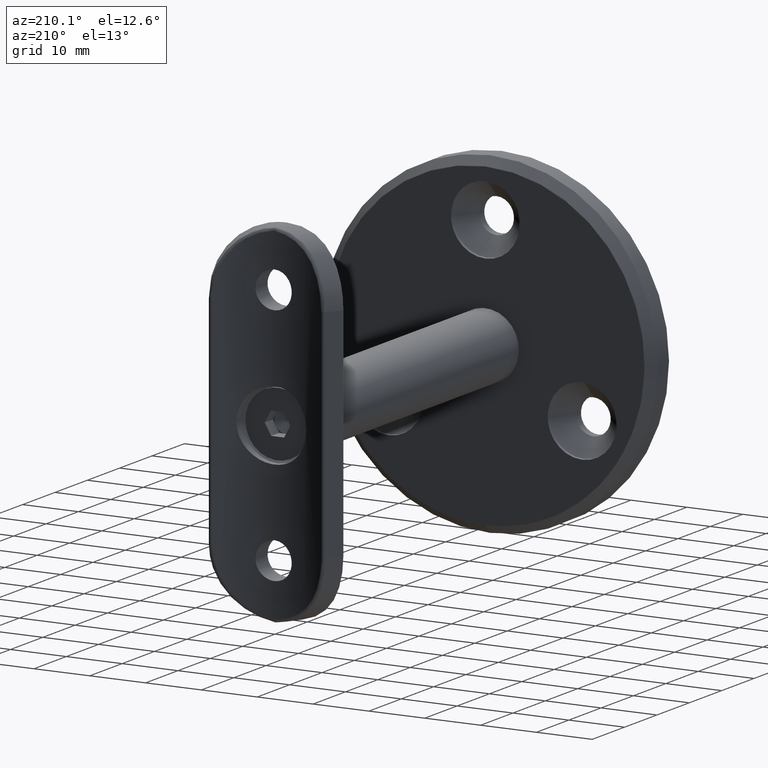
[diagram: clean part render]
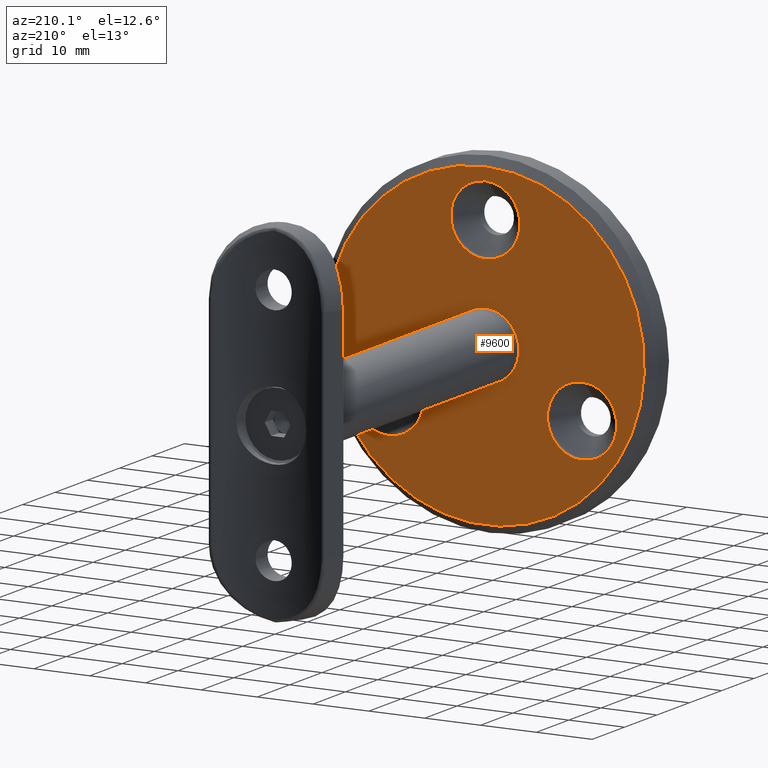
[diagram: same view with one face highlighted and labeled with its STEP entity id]
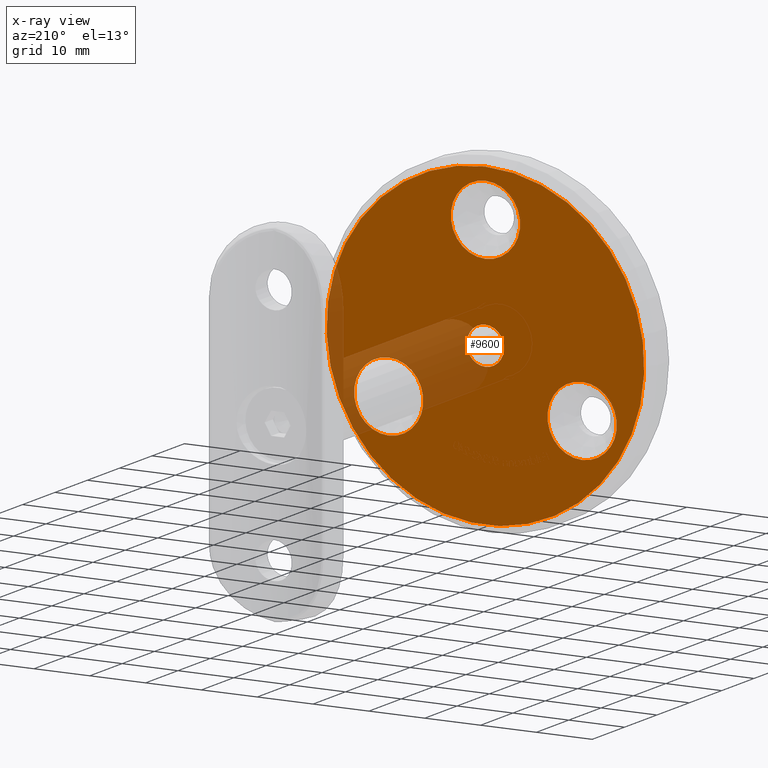
[diagram: x-ray of the same camera — body ghosted, the highlighted face saturated]
A machine part, auxiliary view. The second image highlights one B-rep face of the part: STEP entity #9600.
The next image is the same camera in x-ray: the body ghosted, the highlighted face saturated — about 11% of this face is hidden behind the body in this view.
In plain terms, the highlighted planar face has unit normal (0, 1, 0).
Its self-contained STEP definition (entity closure, byte-faithful):
#104 = EDGE_CURVE ( 'NONE', #432, #432, #13822, .T. ) ;
#386 = CARTESIAN_POINT ( 'NONE',  ( -17.32050807568873196, 5.000000000000000888, -10.00000000000008171 ) ) ;
#432 = VERTEX_POINT ( 'NONE', #11853 ) ;
#535 = CARTESIAN_POINT ( 'NONE',  ( 0.000000000000000000, 5.000000000000000888, 0.000000000000000000 ) ) ;
#977 = DIRECTION ( 'NONE',  ( -0.000000000000000000, -1.000000000000000000, -0.000000000000000000 ) ) ;
#1141 = AXIS2_PLACEMENT_3D ( 'NONE', #6642, #14346, #15745 ) ;
#1202 = DIRECTION ( 'NONE',  ( -0.000000000000000000, -1.000000000000000000, -0.000000000000000000 ) ) ;
#1208 = CIRCLE ( 'NONE', #6115, 6.199999999999998401 ) ;
#1424 = AXIS2_PLACEMENT_3D ( 'NONE', #13338, #12158, #8323 ) ;
#1933 = DIRECTION ( 'NONE',  ( 0.000000000000000000, 1.000000000000000000, 0.000000000000000000 ) ) ;
#2217 = CARTESIAN_POINT ( 'NONE',  ( 17.32050807568886697, 5.000000000000000888, -9.999999999999838352 ) ) ;
#2399 = VERTEX_POINT ( 'NONE', #6786 ) ;
#2748 = PLANE ( 'NONE',  #1141 ) ;
#3103 = DIRECTION ( 'NONE',  ( 0.000000000000000000, 0.000000000000000000, 1.000000000000000000 ) ) ;
#3187 = EDGE_LOOP ( 'NONE', ( #5902 ) ) ;
#3598 = EDGE_CURVE ( 'NONE', #10605, #10605, #14538, .T. ) ;
#5421 = AXIS2_PLACEMENT_3D ( 'NONE', #386, #10463, #3103 ) ;
#5480 = CIRCLE ( 'NONE', #5421, 6.200000000000000178 ) ;
#5902 = ORIENTED_EDGE ( 'NONE', *, *, #7461, .T. ) ;
#6115 = AXIS2_PLACEMENT_3D ( 'NONE', #2217, #977, #8935 ) ;
#6642 = CARTESIAN_POINT ( 'NONE',  ( 0.000000000000000000, 5.000000000000000888, 0.000000000000000000 ) ) ;
#6786 = CARTESIAN_POINT ( 'NONE',  ( 17.32050807568886697, 5.000000000000000888, -3.799999999999840838 ) ) ;
#6863 = FACE_BOUND ( 'NONE', #11960, .T. ) ;
#7110 = ORIENTED_EDGE ( 'NONE', *, *, #104, .T. ) ;
#7461 = EDGE_CURVE ( 'NONE', #2399, #2399, #1208, .T. ) ;
#7769 = AXIS2_PLACEMENT_3D ( 'NONE', #14337, #1202, #10323 ) ;
#7918 = FACE_BOUND ( 'NONE', #11213, .T. ) ;
#8228 = ORIENTED_EDGE ( 'NONE', *, *, #8387, .T. ) ;
#8295 = CARTESIAN_POINT ( 'NONE',  ( -17.32050807568873196, 5.000000000000000888, -3.800000000000081979 ) ) ;
#8323 = DIRECTION ( 'NONE',  ( 0.000000000000000000, 0.000000000000000000, 1.000000000000000000 ) ) ;
#8364 = ORIENTED_EDGE ( 'NONE', *, *, #3598, .T. ) ;
#8387 = EDGE_CURVE ( 'NONE', #11593, #11593, #16461, .T. ) ;
#8935 = DIRECTION ( 'NONE',  ( 0.000000000000000000, 0.000000000000000000, 1.000000000000000000 ) ) ;
#9600 = ADVANCED_FACE ( 'NONE', ( #6863, #11192, #11400, #7918, #14426 ), #2748, .T. ) ;
#10323 = DIRECTION ( 'NONE',  ( 0.000000000000000000, 0.000000000000000000, 1.000000000000000000 ) ) ;
#10463 = DIRECTION ( 'NONE',  ( -0.000000000000000000, -1.000000000000000000, -0.000000000000000000 ) ) ;
#10605 = VERTEX_POINT ( 'NONE', #13541 ) ;
#10917 = EDGE_CURVE ( 'NONE', #15846, #15846, #5480, .T. ) ;
#10994 = CARTESIAN_POINT ( 'NONE',  ( 0.000000000000000000, 5.000000000000000888, 3.349999999999999201 ) ) ;
#11070 = ORIENTED_EDGE ( 'NONE', *, *, #10917, .T. ) ;
#11192 = FACE_BOUND ( 'NONE', #11265, .T. ) ;
#11213 = EDGE_LOOP ( 'NONE', ( #8228 ) ) ;
#11265 = EDGE_LOOP ( 'NONE', ( #11070 ) ) ;
#11400 = FACE_BOUND ( 'NONE', #3187, .T. ) ;
#11593 = VERTEX_POINT ( 'NONE', #10994 ) ;
#11853 = CARTESIAN_POINT ( 'NONE',  ( 0.000000000000000000, 5.000000000000000888, 28.45857864376268864 ) ) ;
#11960 = EDGE_LOOP ( 'NONE', ( #8364 ) ) ;
#12158 = DIRECTION ( 'NONE',  ( -0.000000000000000000, -1.000000000000000000, -0.000000000000000000 ) ) ;
#13338 = CARTESIAN_POINT ( 'NONE',  ( 0.000000000000000000, 5.000000000000000888, 20.00000000000000000 ) ) ;
#13541 = CARTESIAN_POINT ( 'NONE',  ( 0.000000000000000000, 5.000000000000000888, 26.20000000000000284 ) ) ;
#13613 = DIRECTION ( 'NONE',  ( 0.000000000000000000, 0.000000000000000000, 1.000000000000000000 ) ) ;
#13822 = CIRCLE ( 'NONE', #16753, 28.45857864376268864 ) ;
#14337 = CARTESIAN_POINT ( 'NONE',  ( 0.000000000000000000, 5.000000000000000888, 0.000000000000000000 ) ) ;
#14346 = DIRECTION ( 'NONE',  ( 0.000000000000000000, 1.000000000000000000, 0.000000000000000000 ) ) ;
#14426 = FACE_OUTER_BOUND ( 'NONE', #16183, .T. ) ;
#14538 = CIRCLE ( 'NONE', #1424, 6.200000000000001066 ) ;
#15745 = DIRECTION ( 'NONE',  ( 0.000000000000000000, -0.000000000000000000, 1.000000000000000000 ) ) ;
#15846 = VERTEX_POINT ( 'NONE', #8295 ) ;
#16183 = EDGE_LOOP ( 'NONE', ( #7110 ) ) ;
#16461 = CIRCLE ( 'NONE', #7769, 3.349999999999999201 ) ;
#16753 = AXIS2_PLACEMENT_3D ( 'NONE', #535, #1933, #13613 ) ;